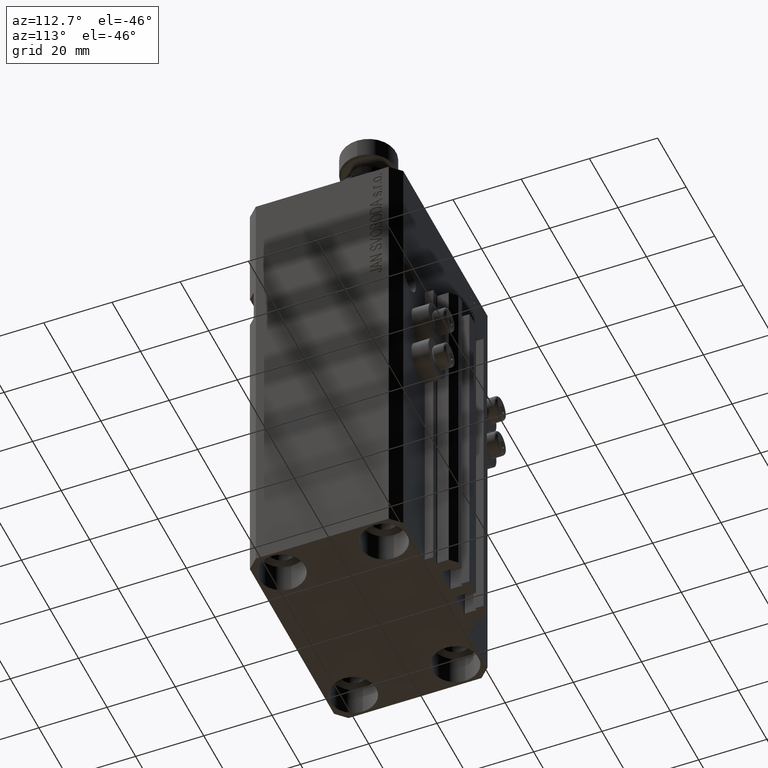
[diagram: clean part render]
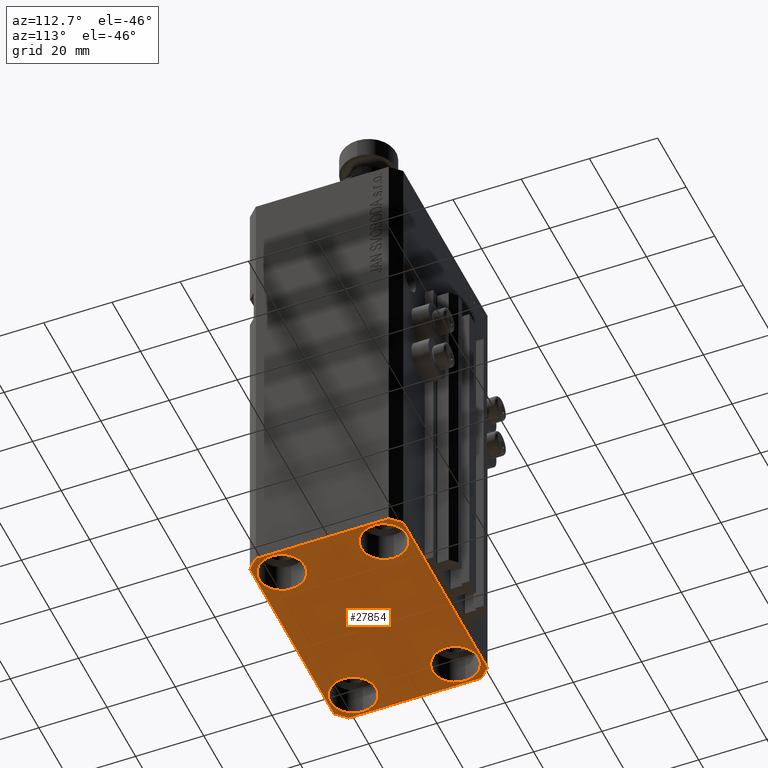
[diagram: same view with one face highlighted and labeled with its STEP entity id]
A machine part, auxiliary view. The second image highlights one B-rep face of the part: STEP entity #27854.
In plain terms, the highlighted planar face has unit normal (0, 0, 1).
Its self-contained STEP definition (entity closure, byte-faithful):
#417 = ORIENTED_EDGE ( 'NONE', *, *, #20641, .F. ) ;
#1039 = CARTESIAN_POINT ( 'NONE',  ( 29.49999999999707967, 22.49999999999951328, -137.0000000000000000 ) ) ;
#1500 = DIRECTION ( 'NONE',  ( -0.7071067811865352493, 0.7071067811865597852, 0.000000000000000000 ) ) ;
#1518 = AXIS2_PLACEMENT_3D ( 'NONE', #19401, #3817, #34181 ) ;
#1692 = VERTEX_POINT ( 'NONE', #5520 ) ;
#1707 = LINE ( 'NONE', #17053, #12305 ) ;
#1877 = VERTEX_POINT ( 'NONE', #32368 ) ;
#2408 = DIRECTION ( 'NONE',  ( 1.000000000000000000, 1.176083712526788232E-16, 0.000000000000000000 ) ) ;
#2607 = VERTEX_POINT ( 'NONE', #1039 ) ;
#3323 = FACE_BOUND ( 'NONE', #10564, .T. ) ;
#3817 = DIRECTION ( 'NONE',  ( -0.000000000000000000, -0.000000000000000000, 1.000000000000000000 ) ) ;
#4976 = ORIENTED_EDGE ( 'NONE', *, *, #48351, .F. ) ;
#5145 = DIRECTION ( 'NONE',  ( 1.000000000000000000, 0.000000000000000000, 0.000000000000000000 ) ) ;
#5307 = CARTESIAN_POINT ( 'NONE',  ( -18.24999999997747224, 15.00000000000000000, -137.0000000000000000 ) ) ;
#5384 = EDGE_LOOP ( 'NONE', ( #13620, #4976, #40455, #16853, #417, #43456, #20679, #25992 ) ) ;
#5520 = CARTESIAN_POINT ( 'NONE',  ( 29.49999999999650413, -22.49999999999949196, -137.0000000000000000 ) ) ;
#5788 = CARTESIAN_POINT ( 'NONE',  ( -31.75000000002253842, 15.00000000000000000, -137.0000000000000000 ) ) ;
#6016 = ORIENTED_EDGE ( 'NONE', *, *, #20560, .T. ) ;
#6825 = ORIENTED_EDGE ( 'NONE', *, *, #11983, .T. ) ;
#7156 = VERTEX_POINT ( 'NONE', #5307 ) ;
#7189 = EDGE_CURVE ( 'NONE', #7156, #34573, #26206, .T. ) ;
#7301 = CARTESIAN_POINT ( 'NONE',  ( 25.00000000000000355, -15.00000000000000000, -137.0000000000000000 ) ) ;
#7339 = VERTEX_POINT ( 'NONE', #23496 ) ;
#7457 = AXIS2_PLACEMENT_3D ( 'NONE', #10844, #26625, #15287 ) ;
#7517 = VERTEX_POINT ( 'NONE', #40956 ) ;
#7620 = DIRECTION ( 'NONE',  ( -0.7071067811865474617, -0.7071067811865474617, 0.000000000000000000 ) ) ;
#8084 = CIRCLE ( 'NONE', #26195, 6.750000000041541881 ) ;
#8183 = LINE ( 'NONE', #46416, #19281 ) ;
#8233 = CARTESIAN_POINT ( 'NONE',  ( 29.49999999999707967, 22.49999999999951328, -137.0000000000000000 ) ) ;
#8477 = VECTOR ( 'NONE', #32067, 1000.000000000000114 ) ;
#8538 = CARTESIAN_POINT ( 'NONE',  ( 18.25000000004154543, 15.00000000000000888, -137.0000000000000000 ) ) ;
#9357 = AXIS2_PLACEMENT_3D ( 'NONE', #48730, #18423, #14712 ) ;
#9368 = CARTESIAN_POINT ( 'NONE',  ( -25.00000000000000355, -15.00000000000000000, -137.0000000000000000 ) ) ;
#9568 = AXIS2_PLACEMENT_3D ( 'NONE', #35023, #38716, #5145 ) ;
#9945 = VERTEX_POINT ( 'NONE', #27429 ) ;
#10564 = EDGE_LOOP ( 'NONE', ( #6825, #42515 ) ) ;
#10844 = CARTESIAN_POINT ( 'NONE',  ( 24.99999999999999645, 15.00000000000000888, -137.0000000000000000 ) ) ;
#11451 = LINE ( 'NONE', #8233, #17618 ) ;
#11478 = PLANE ( 'NONE',  #9357 ) ;
#11946 = ORIENTED_EDGE ( 'NONE', *, *, #30174, .T. ) ;
#11983 = EDGE_CURVE ( 'NONE', #34386, #9945, #34276, .T. ) ;
#12305 = VECTOR ( 'NONE', #20750, 1000.000000000000000 ) ;
#13081 = CARTESIAN_POINT ( 'NONE',  ( -32.49999999999650413, -19.49999999999949907, -137.0000000000000000 ) ) ;
#13492 = VECTOR ( 'NONE', #40741, 1000.000000000000000 ) ;
#13620 = ORIENTED_EDGE ( 'NONE', *, *, #42495, .F. ) ;
#14042 = DIRECTION ( 'NONE',  ( -0.000000000000000000, -0.000000000000000000, 1.000000000000000000 ) ) ;
#14670 = VERTEX_POINT ( 'NONE', #37763 ) ;
#14712 = DIRECTION ( 'NONE',  ( 1.000000000000000000, 0.000000000000000000, -0.000000000000000000 ) ) ;
#14875 = DIRECTION ( 'NONE',  ( 1.000000000000000000, 0.000000000000000000, 0.000000000000000000 ) ) ;
#15287 = DIRECTION ( 'NONE',  ( 1.000000000000000000, 0.000000000000000000, 0.000000000000000000 ) ) ;
#15781 = LINE ( 'NONE', #22930, #37540 ) ;
#15854 = CARTESIAN_POINT ( 'NONE',  ( -25.00000000000000355, 15.00000000000000000, -137.0000000000000000 ) ) ;
#15988 = EDGE_CURVE ( 'NONE', #17635, #41962, #37437, .T. ) ;
#16853 = ORIENTED_EDGE ( 'NONE', *, *, #30639, .F. ) ;
#17053 = CARTESIAN_POINT ( 'NONE',  ( 32.49999999999651124, -19.49999999999949196, -137.0000000000000000 ) ) ;
#17618 = VECTOR ( 'NONE', #23053, 1000.000000000000000 ) ;
#17635 = VERTEX_POINT ( 'NONE', #41886 ) ;
#17664 = EDGE_CURVE ( 'NONE', #41962, #17635, #32778, .T. ) ;
#17672 = VERTEX_POINT ( 'NONE', #18498 ) ;
#18268 = CIRCLE ( 'NONE', #9568, 6.749999999958452790 ) ;
#18423 = DIRECTION ( 'NONE',  ( 0.000000000000000000, 0.000000000000000000, 1.000000000000000000 ) ) ;
#18430 = EDGE_CURVE ( 'NONE', #40120, #1877, #1707, .T. ) ;
#18498 = CARTESIAN_POINT ( 'NONE',  ( -32.49999999999650413, 19.49999999999949907, -137.0000000000000000 ) ) ;
#18683 = CIRCLE ( 'NONE', #43087, 6.750000000022533087 ) ;
#19043 = CARTESIAN_POINT ( 'NONE',  ( 29.49999999999650413, -22.49999999999949196, -137.0000000000000000 ) ) ;
#19281 = VECTOR ( 'NONE', #1500, 1000.000000000000000 ) ;
#19401 = CARTESIAN_POINT ( 'NONE',  ( -25.00000000000000355, -15.00000000000000000, -137.0000000000000000 ) ) ;
#19514 = EDGE_CURVE ( 'NONE', #7339, #17672, #15781, .T. ) ;
#20560 = EDGE_CURVE ( 'NONE', #34573, #7156, #18683, .T. ) ;
#20641 = EDGE_CURVE ( 'NONE', #14670, #1692, #27883, .T. ) ;
#20679 = ORIENTED_EDGE ( 'NONE', *, *, #44336, .F. ) ;
#20750 = DIRECTION ( 'NONE',  ( 1.334402673828349134E-14, 1.000000000000000000, 0.000000000000000000 ) ) ;
#21478 = EDGE_CURVE ( 'NONE', #46303, #14670, #35764, .T. ) ;
#21846 = VECTOR ( 'NONE', #2408, 1000.000000000000000 ) ;
#22378 = DIRECTION ( 'NONE',  ( -0.000000000000000000, -0.000000000000000000, 1.000000000000000000 ) ) ;
#22433 = CARTESIAN_POINT ( 'NONE',  ( 25.00000000000000355, -15.00000000000000000, -137.0000000000000000 ) ) ;
#22898 = EDGE_LOOP ( 'NONE', ( #47884, #47134 ) ) ;
#22930 = CARTESIAN_POINT ( 'NONE',  ( -29.49999999999650413, 22.49999999999949907, -137.0000000000000000 ) ) ;
#23053 = DIRECTION ( 'NONE',  ( -1.000000000000000000, -2.352167425053553784E-16, 0.000000000000000000 ) ) ;
#23496 = CARTESIAN_POINT ( 'NONE',  ( -29.49999999999650413, 22.49999999999949907, -137.0000000000000000 ) ) ;
#24135 = AXIS2_PLACEMENT_3D ( 'NONE', #22433, #37947, #45341 ) ;
#24414 = ORIENTED_EDGE ( 'NONE', *, *, #7189, .T. ) ;
#24422 = DIRECTION ( 'NONE',  ( 1.000000000000000000, 0.000000000000000000, 0.000000000000000000 ) ) ;
#25992 = ORIENTED_EDGE ( 'NONE', *, *, #19514, .F. ) ;
#26195 = AXIS2_PLACEMENT_3D ( 'NONE', #9368, #14042, #24422 ) ;
#26206 = CIRCLE ( 'NONE', #38814, 6.750000000022533087 ) ;
#26433 = EDGE_LOOP ( 'NONE', ( #45939, #11946 ) ) ;
#26533 = FACE_BOUND ( 'NONE', #31269, .T. ) ;
#26625 = DIRECTION ( 'NONE',  ( -0.000000000000000000, -0.000000000000000000, 1.000000000000000000 ) ) ;
#27429 = CARTESIAN_POINT ( 'NONE',  ( 31.74999999995845101, 15.00000000000000888, -137.0000000000000000 ) ) ;
#27854 = ADVANCED_FACE ( 'NONE', ( #47021, #28288, #3323, #26533, #45261 ), #11478, .F. ) ;
#27883 = LINE ( 'NONE', #28587, #21846 ) ;
#28288 = FACE_BOUND ( 'NONE', #22898, .T. ) ;
#28587 = CARTESIAN_POINT ( 'NONE',  ( -29.49999999999650413, -22.49999999999949907, -137.0000000000000000 ) ) ;
#29779 = CARTESIAN_POINT ( 'NONE',  ( 18.25000000002253842, -15.00000000000000000, -137.0000000000000000 ) ) ;
#30174 = EDGE_CURVE ( 'NONE', #7517, #44825, #32283, .T. ) ;
#30292 = VECTOR ( 'NONE', #39430, 1000.000000000000000 ) ;
#30639 = EDGE_CURVE ( 'NONE', #1692, #40120, #34074, .T. ) ;
#31269 = EDGE_LOOP ( 'NONE', ( #6016, #24414 ) ) ;
#31338 = CARTESIAN_POINT ( 'NONE',  ( -25.00000000000000355, 15.00000000000000000, -137.0000000000000000 ) ) ;
#31803 = CARTESIAN_POINT ( 'NONE',  ( -32.49999999999650413, 19.49999999999949907, -137.0000000000000000 ) ) ;
#31943 = AXIS2_PLACEMENT_3D ( 'NONE', #7301, #22378, #47519 ) ;
#32067 = DIRECTION ( 'NONE',  ( 0.7071067811865474617, -0.7071067811865474617, 0.000000000000000000 ) ) ;
#32283 = CIRCLE ( 'NONE', #1518, 6.750000000041541881 ) ;
#32368 = CARTESIAN_POINT ( 'NONE',  ( 32.49999999999702993, 19.49999999999945999, -137.0000000000000000 ) ) ;
#32778 = CIRCLE ( 'NONE', #24135, 6.749999999977465137 ) ;
#34074 = LINE ( 'NONE', #19043, #13492 ) ;
#34181 = DIRECTION ( 'NONE',  ( 1.000000000000000000, 0.000000000000000000, 0.000000000000000000 ) ) ;
#34276 = CIRCLE ( 'NONE', #7457, 6.749999999958452790 ) ;
#34386 = VERTEX_POINT ( 'NONE', #8538 ) ;
#34573 = VERTEX_POINT ( 'NONE', #5788 ) ;
#34789 = DIRECTION ( 'NONE',  ( -0.000000000000000000, -0.000000000000000000, 1.000000000000000000 ) ) ;
#35023 = CARTESIAN_POINT ( 'NONE',  ( 24.99999999999999645, 15.00000000000000888, -137.0000000000000000 ) ) ;
#35400 = CARTESIAN_POINT ( 'NONE',  ( 32.49999999999651124, -19.49999999999949196, -137.0000000000000000 ) ) ;
#35758 = CARTESIAN_POINT ( 'NONE',  ( -32.49999999999650413, -19.49999999999949907, -137.0000000000000000 ) ) ;
#35764 = LINE ( 'NONE', #13081, #8477 ) ;
#37437 = CIRCLE ( 'NONE', #31943, 6.749999999977465137 ) ;
#37540 = VECTOR ( 'NONE', #7620, 1000.000000000000114 ) ;
#37763 = CARTESIAN_POINT ( 'NONE',  ( -29.49999999999650413, -22.49999999999949907, -137.0000000000000000 ) ) ;
#37947 = DIRECTION ( 'NONE',  ( -0.000000000000000000, -0.000000000000000000, 1.000000000000000000 ) ) ;
#38716 = DIRECTION ( 'NONE',  ( -0.000000000000000000, -0.000000000000000000, 1.000000000000000000 ) ) ;
#38729 = DIRECTION ( 'NONE',  ( 1.000000000000000000, 0.000000000000000000, 0.000000000000000000 ) ) ;
#38814 = AXIS2_PLACEMENT_3D ( 'NONE', #15854, #45181, #14875 ) ;
#38827 = EDGE_CURVE ( 'NONE', #9945, #34386, #18268, .T. ) ;
#39430 = DIRECTION ( 'NONE',  ( 0.000000000000000000, -1.000000000000000000, 0.000000000000000000 ) ) ;
#40120 = VERTEX_POINT ( 'NONE', #35400 ) ;
#40455 = ORIENTED_EDGE ( 'NONE', *, *, #18430, .F. ) ;
#40741 = DIRECTION ( 'NONE',  ( 0.7071067811865483499, 0.7071067811865466846, 0.000000000000000000 ) ) ;
#40956 = CARTESIAN_POINT ( 'NONE',  ( -18.24999999995845812, -15.00000000000000000, -137.0000000000000000 ) ) ;
#40967 = EDGE_CURVE ( 'NONE', #44825, #7517, #8084, .T. ) ;
#41886 = CARTESIAN_POINT ( 'NONE',  ( 31.74999999997746869, -15.00000000000000000, -137.0000000000000000 ) ) ;
#41962 = VERTEX_POINT ( 'NONE', #29779 ) ;
#42495 = EDGE_CURVE ( 'NONE', #2607, #7339, #11451, .T. ) ;
#42515 = ORIENTED_EDGE ( 'NONE', *, *, #38827, .T. ) ;
#43087 = AXIS2_PLACEMENT_3D ( 'NONE', #31338, #34789, #38729 ) ;
#43456 = ORIENTED_EDGE ( 'NONE', *, *, #21478, .F. ) ;
#44336 = EDGE_CURVE ( 'NONE', #17672, #46303, #47305, .T. ) ;
#44825 = VERTEX_POINT ( 'NONE', #47620 ) ;
#45181 = DIRECTION ( 'NONE',  ( -0.000000000000000000, -0.000000000000000000, 1.000000000000000000 ) ) ;
#45261 = FACE_OUTER_BOUND ( 'NONE', #5384, .T. ) ;
#45341 = DIRECTION ( 'NONE',  ( 1.000000000000000000, 0.000000000000000000, 0.000000000000000000 ) ) ;
#45939 = ORIENTED_EDGE ( 'NONE', *, *, #40967, .T. ) ;
#46303 = VERTEX_POINT ( 'NONE', #35758 ) ;
#46416 = CARTESIAN_POINT ( 'NONE',  ( 32.49999999999702993, 19.49999999999945999, -137.0000000000000000 ) ) ;
#47021 = FACE_BOUND ( 'NONE', #26433, .T. ) ;
#47134 = ORIENTED_EDGE ( 'NONE', *, *, #15988, .T. ) ;
#47305 = LINE ( 'NONE', #31803, #30292 ) ;
#47519 = DIRECTION ( 'NONE',  ( 1.000000000000000000, 0.000000000000000000, 0.000000000000000000 ) ) ;
#47620 = CARTESIAN_POINT ( 'NONE',  ( -31.75000000004154899, -15.00000000000000000, -137.0000000000000000 ) ) ;
#47884 = ORIENTED_EDGE ( 'NONE', *, *, #17664, .T. ) ;
#48351 = EDGE_CURVE ( 'NONE', #1877, #2607, #8183, .T. ) ;
#48730 = CARTESIAN_POINT ( 'NONE',  ( 0.000000000000000000, 0.000000000000000000, -137.0000000000000000 ) ) ;